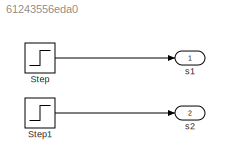
MODEL slx_61243556eda0
KIND model
CONFIG AbsTol = auto
CONFIG EnableMultiTasking = on
CONFIG FixedStep = 1.000000
CONFIG MaxStep = auto
CONFIG MinStep = auto
CONFIG RelTol = 1e-3
CONFIG SampleTimeConstraint = Unconstrained
CONFIG Solver = FixedStepDiscrete
CONFIG SolverName = FixedStepDiscrete
CONFIG StartTime = 0.0
CONFIG StopTime = 10.0
WORKSPACE source: MAT-file member
WORKSPACE already_pp = 0
BLOCK [Step] Step
  After = 0
  Before = 1
  SampleTime = 1
  Time = 5
BLOCK [Step] Step1
  After = 180
  SampleTime = 1
  Time = 10
BLOCK [Outport] s1
  IconDisplay = Port number
BLOCK [Outport] s2
  IconDisplay = Port number
  Port = 2
LINE Step1:1 -> s2:1
LINE Step:1 -> s1:1
